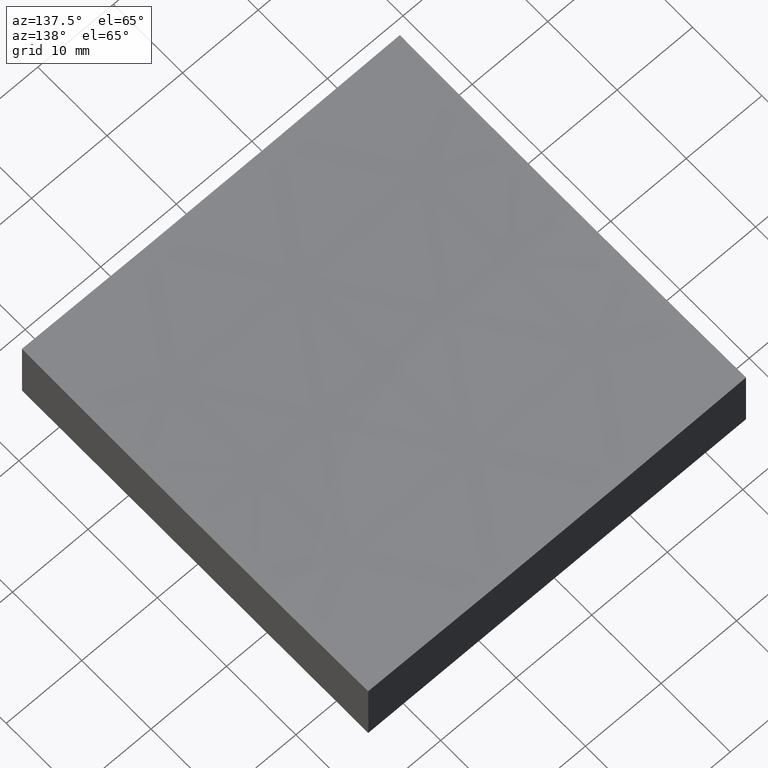
[diagram: clean part render]
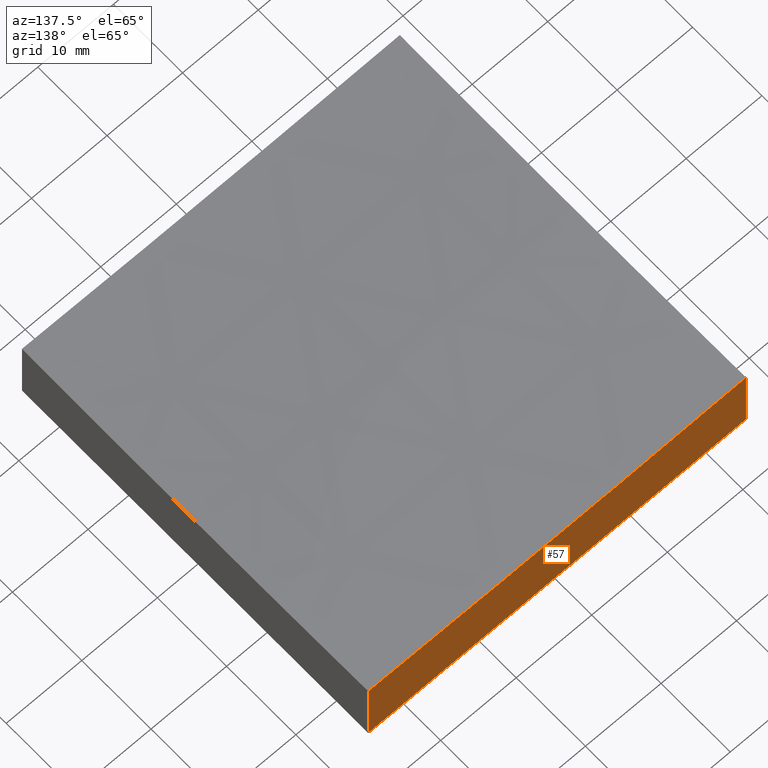
[diagram: same view with one face highlighted and labeled with its STEP entity id]
A machine part, auxiliary view. The second image highlights one B-rep face of the part: STEP entity #57.
In plain terms, the highlighted planar face has unit normal (0, 1, 0).
Its self-contained STEP definition (entity closure, byte-faithful):
#3 = FACE_OUTER_BOUND ( 'NONE', #84, .T. ) ;
#12 = DIRECTION ( 'NONE',  ( -0.0000000000000000000, -0.0000000000000000000, -1.000000000000000000 ) ) ;
#22 = VERTEX_POINT ( 'NONE', #80 ) ;
#24 = VECTOR ( 'NONE', #81, 1000.000000000000000 ) ;
#28 = DIRECTION ( 'NONE',  ( 0.0000000000000000000, 1.000000000000000000, 0.0000000000000000000 ) ) ;
#31 = DIRECTION ( 'NONE',  ( 0.0000000000000000000, 1.000000000000000000, 0.0000000000000000000 ) ) ;
#51 = EDGE_CURVE ( 'NONE', #22, #66, #56, .T. ) ;
#56 = LINE ( 'NONE', #114, #24 ) ;
#57 = ADVANCED_FACE ( 'NONE', ( #3 ), #239, .T. ) ;
#61 = CARTESIAN_POINT ( 'NONE',  ( -25.00000000000000355, 24.99999999999999645, 50.00000000000000000 ) ) ;
#62 = ORIENTED_EDGE ( 'NONE', *, *, #85, .F. ) ;
#66 = VERTEX_POINT ( 'NONE', #69 ) ;
#69 = CARTESIAN_POINT ( 'NONE',  ( 24.99999999999999645, 24.99999999999999645, 0.0000000000000000000 ) ) ;
#79 = AXIS2_PLACEMENT_3D ( 'NONE', #61, #28, #121 ) ;
#80 = CARTESIAN_POINT ( 'NONE',  ( 24.99999999999999645, 24.99999999999999645, 9.625195434665666738 ) ) ;
#81 = DIRECTION ( 'NONE',  ( -0.0000000000000000000, -0.0000000000000000000, -1.000000000000000000 ) ) ;
#84 = EDGE_LOOP ( 'NONE', ( #154, #174, #108, #62 ) ) ;
#85 = EDGE_CURVE ( 'NONE', #237, #225, #163, .T. ) ;
#89 = CARTESIAN_POINT ( 'NONE',  ( 1.235668620339679159E-13, 24.99999999999999645, 1008.999999999999886 ) ) ;
#108 = ORIENTED_EDGE ( 'NONE', *, *, #244, .F. ) ;
#112 = VECTOR ( 'NONE', #127, 1000.000000000000000 ) ;
#114 = CARTESIAN_POINT ( 'NONE',  ( 24.99999999999999645, 24.99999999999999645, 50.00000000000000000 ) ) ;
#118 = AXIS2_PLACEMENT_3D ( 'NONE', #89, #31, #227 ) ;
#121 = DIRECTION ( 'NONE',  ( 0.0000000000000000000, -0.0000000000000000000, 1.000000000000000000 ) ) ;
#123 = CARTESIAN_POINT ( 'NONE',  ( -25.00000000000000355, 24.99999999999999645, 50.00000000000000000 ) ) ;
#127 = DIRECTION ( 'NONE',  ( 1.000000000000000000, 0.0000000000000000000, 0.0000000000000000000 ) ) ;
#129 = CARTESIAN_POINT ( 'NONE',  ( -25.00000000000000355, 24.99999999999999645, 0.0000000000000000000 ) ) ;
#143 = EDGE_CURVE ( 'NONE', #22, #237, #198, .T. ) ;
#154 = ORIENTED_EDGE ( 'NONE', *, *, #143, .F. ) ;
#163 = LINE ( 'NONE', #123, #238 ) ;
#174 = ORIENTED_EDGE ( 'NONE', *, *, #51, .T. ) ;
#189 = CARTESIAN_POINT ( 'NONE',  ( -25.00000000000000355, 24.99999999999999645, 0.0000000000000000000 ) ) ;
#191 = LINE ( 'NONE', #189, #112 ) ;
#198 = CIRCLE ( 'NONE', #118, 999.6874511566101091 ) ;
#216 = CARTESIAN_POINT ( 'NONE',  ( -25.00000000000000711, 24.99999999999999645, 9.625195434665666738 ) ) ;
#225 = VERTEX_POINT ( 'NONE', #129 ) ;
#227 = DIRECTION ( 'NONE',  ( 0.0000000000000000000, 0.0000000000000000000, 1.000000000000000000 ) ) ;
#237 = VERTEX_POINT ( 'NONE', #216 ) ;
#238 = VECTOR ( 'NONE', #12, 1000.000000000000000 ) ;
#239 = PLANE ( 'NONE',  #79 ) ;
#244 = EDGE_CURVE ( 'NONE', #225, #66, #191, .T. ) ;